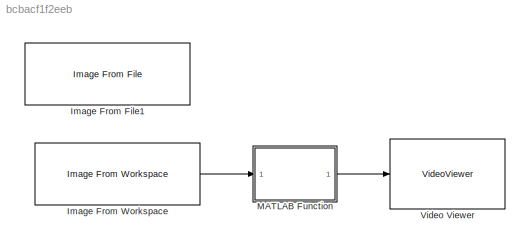
MODEL slx_bcbacf1f2eeb
KIND model
CONFIG AbsTol = auto
CONFIG EnableMultiTasking = off
CONFIG FixedStep = auto
CONFIG MaxStep = auto
CONFIG MinStep = auto
CONFIG RelTol = 1e-3
CONFIG SampleTimeConstraint = Unconstrained
CONFIG Solver = VariableStepAuto
CONFIG SolverName = VariableStepAuto
CONFIG StartTime = 0.0
CONFIG StopTime = 10.0
BLOCK [Reference] Image From File1  REF=visionsources/Image From File
  Commented = on
  Ports = [0, 1]
  SourceBlock = visionsources/Image From File
  SourceProductBaseCode = VP
  SourceProductName = Computer Vision Toolbox
  SourceType = Image From File
  Tag = vipblks_nd
BLOCK [Reference] Image From Workspace  REF=visionsources/Image From Workspace
  Ports = [0, 1]
  SourceBlock = visionsources/Image From Workspace
  SourceProductBaseCode = VP
  SourceProductName = Computer Vision Toolbox
  SourceType = Image From Workspace
  Tag = vipblks_nd
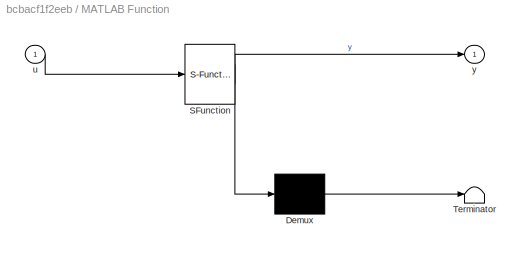
BLOCK [SubSystem] MATLAB Function
  ErrorFcn = Stateflow.Translate.translate
  PermitHierarchicalResolution = ExplicitOnly
  Ports = [1, 1]
  RequestExecContextInheritance = off
  SFBlockType = MATLAB Function
  TreatAsAtomicUnit = on
BLOCK [Demux] MATLAB Function/ Demux 
  Outputs = 1
  Ports = [1, 1]
BLOCK [S-Function] MATLAB Function/ SFunction 
  EnableBusSupport = on
  FunctionName = sf_sfun
  PortCounts = [1 2]
  Ports = [1, 2]
  SFcnIsStateOwnerBlock = off
  SFunctionDeploymentMode = off
  Tag = Stateflow S-Function 2
BLOCK [Terminator] MATLAB Function/ Terminator 
BLOCK [Inport] MATLAB Function/u
  IconDisplay = Port number
BLOCK [Outport] MATLAB Function/y
  IconDisplay = Port number
BLOCK [VideoViewer] Video Viewer
  FigPos = [1 766 1360 666]
  Ports = [1]
  ScopeSpecificationString = vipscopes.VideoViewerScopeCfg('CurrentConfiguration', extmgr.ConfigurationSet(extmgr.Configuration('Core','General UI',true),extmgr.Configuration('Core','Source UI',true),extmgr.Configuration('Sources','WiredSimulink',true),extmgr.Configuration('Visuals','Video',true),extmgr.Configuration('Tools','Image Navigation Tools',true),extmgr.Configuration('Tools','Image Tool',true),extmgr.Configuration('T...<+98ch>
LINE Image From Workspace:1 -> MATLAB Function:1
LINE MATLAB Function:1 -> Video Viewer:1
CHART MATLAB Function states=1 transitions=1
  STATE_LABEL 'eML_blk_kernel()'
  STATE_LABEL 'SCRIPT:\nfunction y = blob_detect(u)\n\n\n%% Thresold image\nI = rgb2hsv(u);\n\n% Define thresholds for channel 1 based on histogram settings\nchannel1Min = 0.333;\nchannel1Max = 0.561;\n\n% Define thresholds for channel 2 based on histogram settings\nchannel2Min = 0.327;\nchannel2Max = 1.000;\n\n% Define thresholds for channel 3 based on histogram settings\nchannel3Min = 0.186;\nchannel3Max = 1.000;\n\n% Create mas...<+966ch>'
